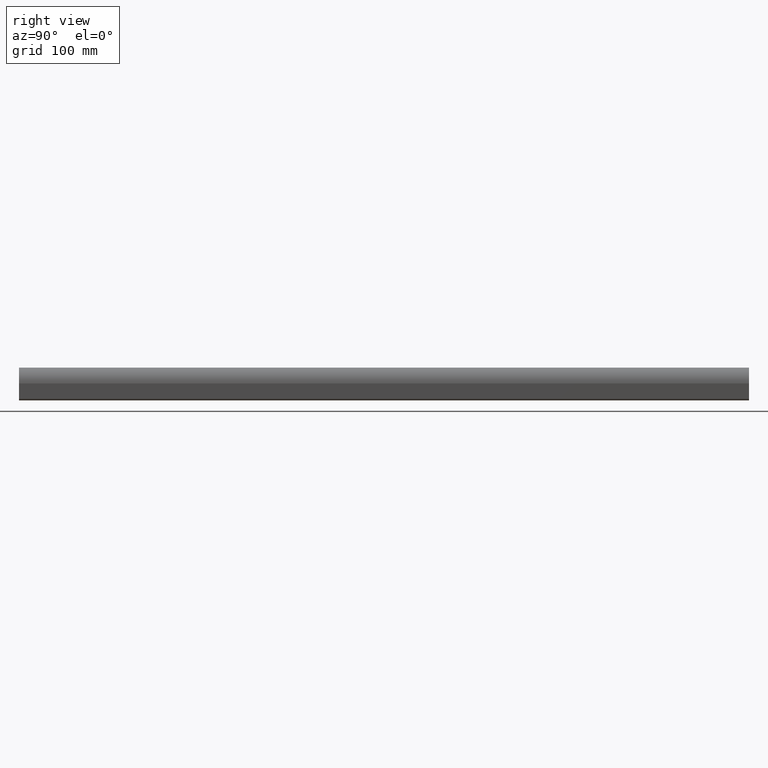
[diagram: clean part render]
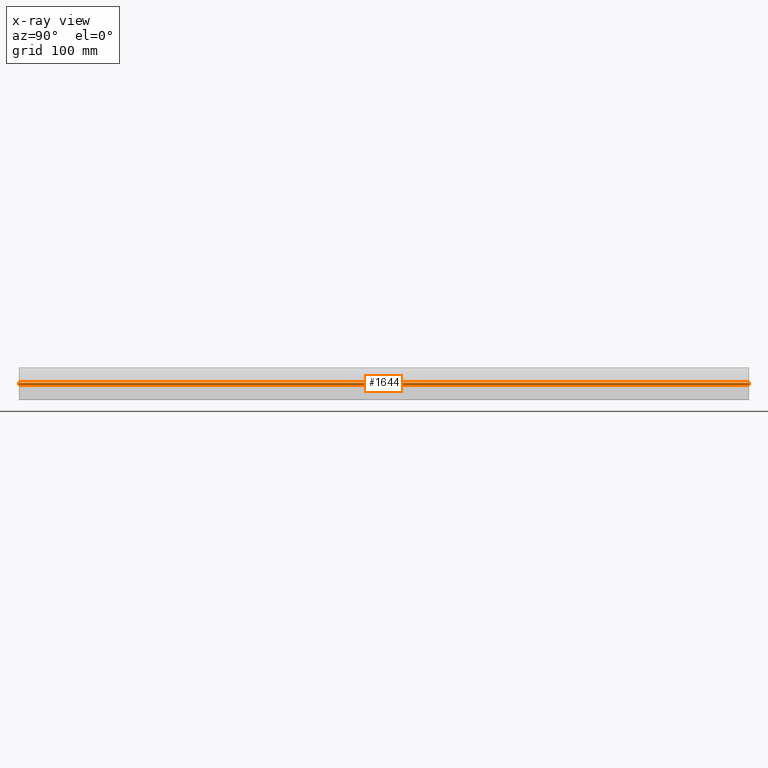
[diagram: x-ray — body ghosted, one internal face saturated and labeled with its STEP entity id]
A machine part, right view, then the same camera in x-ray: the body is ghosted and one INTERNAL B-rep face — a face not visible from any outside direction — is saturated and labeled: STEP entity #1644.
In plain terms, the highlighted cylindrical surface (edge-blend (fillet) strip) has radius 3.65 mm, axis along (0, 1, 0).
Its self-contained STEP definition (entity closure, byte-faithful):
#102=FACE_OUTER_BOUND('',#187,.T.);
#187=EDGE_LOOP('',(#1222,#1223,#1224,#1225));
#312=LINE('',#2650,#467);
#313=LINE('',#2656,#468);
#467=VECTOR('',#2142,10.);
#468=VECTOR('',#2149,10.);
#599=CIRCLE('',#1800,3.65001711536541);
#600=CIRCLE('',#1801,3.65001711536541);
#725=VERTEX_POINT('',#2647);
#726=VERTEX_POINT('',#2649);
#727=VERTEX_POINT('',#2653);
#728=VERTEX_POINT('',#2655);
#931=EDGE_CURVE('',#725,#726,#312,.T.);
#933=EDGE_CURVE('',#727,#725,#599,.T.);
#934=EDGE_CURVE('',#727,#728,#313,.T.);
#935=EDGE_CURVE('',#726,#728,#600,.T.);
#1222=ORIENTED_EDGE('',*,*,#933,.F.);
#1223=ORIENTED_EDGE('',*,*,#934,.T.);
#1224=ORIENTED_EDGE('',*,*,#935,.F.);
#1225=ORIENTED_EDGE('',*,*,#931,.F.);
#1581=CYLINDRICAL_SURFACE('',#1799,3.65001711536541);
#1644=ADVANCED_FACE('',(#102),#1581,.F.);
#1799=AXIS2_PLACEMENT_3D('',#2652,#2145,#2146);
#1800=AXIS2_PLACEMENT_3D('',#2654,#2147,#2148);
#1801=AXIS2_PLACEMENT_3D('',#2657,#2150,#2151);
#2142=DIRECTION('',(0.,1.,0.));
#2145=DIRECTION('center_axis',(0.,1.,0.));
#2146=DIRECTION('ref_axis',(0.911081880670661,0.,0.412225431910273));
#2147=DIRECTION('center_axis',(0.,1.,0.));
#2148=DIRECTION('ref_axis',(0.911081880670661,0.,0.412225431910273));
#2149=DIRECTION('',(0.,1.,0.));
#2150=DIRECTION('center_axis',(0.,-1.,0.));
#2151=DIRECTION('ref_axis',(0.911081880670661,0.,0.412225431910273));
#2647=CARTESIAN_POINT('',(3.32546445878977,0.,-1.50462988103063));
#2649=CARTESIAN_POINT('',(3.32546445878977,1000.,-1.50462988103063));
#2650=CARTESIAN_POINT('',(3.32546445878977,0.,-1.50462988103063));
#2652=CARTESIAN_POINT('Origin',(8.52297210656284E-10,0.,8.52297210656284E-10));
#2653=CARTESIAN_POINT('',(3.32546445879951,0.,1.50462988271369));
#2654=CARTESIAN_POINT('Origin',(8.52297210656284E-10,0.,8.52297210656284E-10));
#2655=CARTESIAN_POINT('',(3.32546445879951,1000.,1.50462988271369));
#2656=CARTESIAN_POINT('',(3.32546445879951,0.,1.50462988271369));
#2657=CARTESIAN_POINT('Origin',(8.52297210656284E-10,1000.,8.52297210656284E-10));